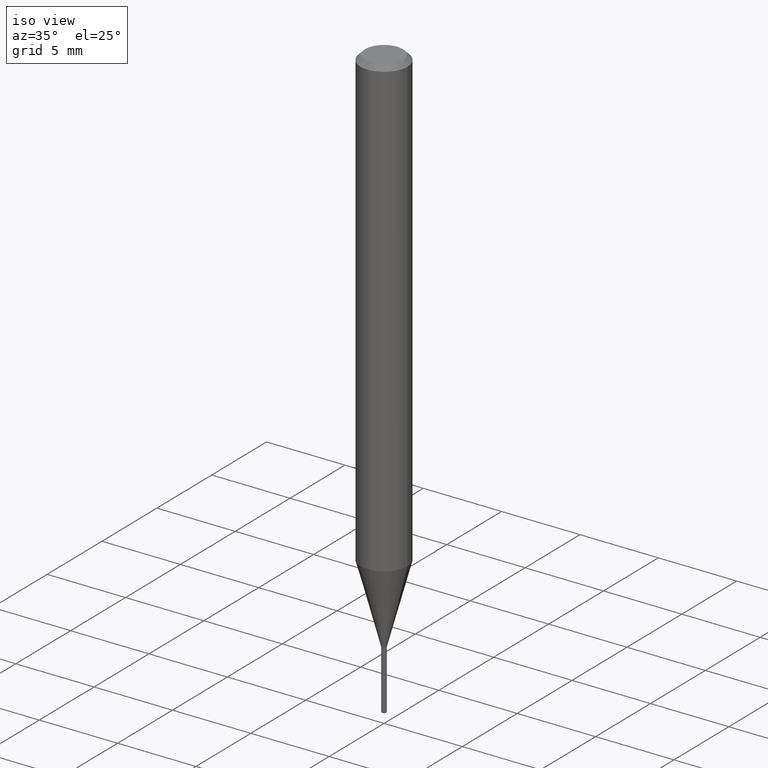
[diagram: clean part render]
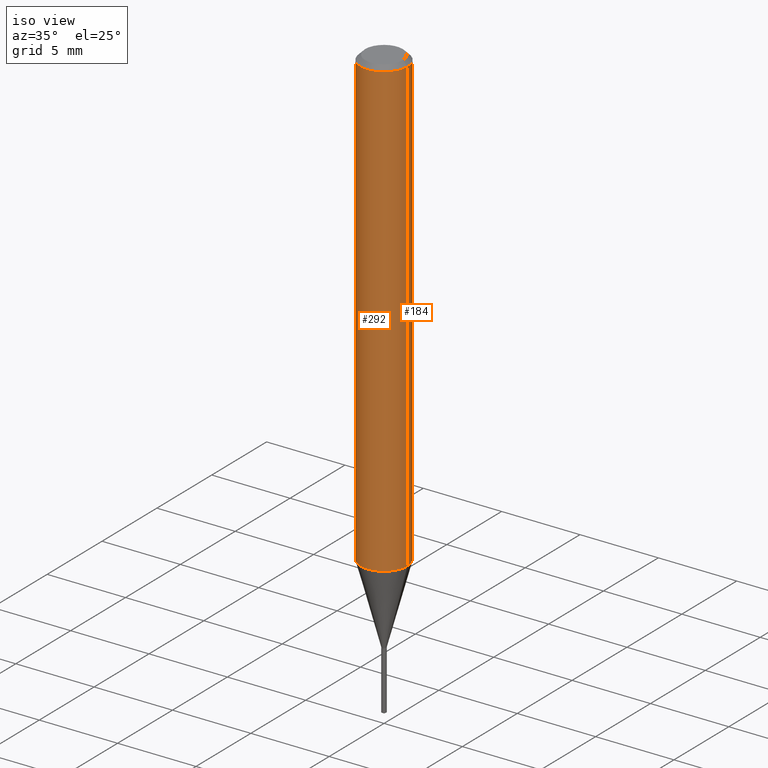
[diagram: same view with one multi-face feature highlighted, each face labeled with its STEP entity id]
A machine part, iso view. The highlighted faces form ONE feature: a constant-radius fillet chain: 2 tangent blend faces with common blend radius 1.4999 mm. The faces share edges in the B-rep.
Their STEP definitions:
[1] entity #292 (Cylinder):
#5 = DIRECTION ( 'NONE',  ( -2.445468806185136597E-29, 3.491481338843145583E-15, 1.000000000000000000 ) ) ;
#17 = CARTESIAN_POINT ( 'NONE',  ( -0.05905000000000013710, -3.580597539234551987E-15, -1.145695089416200130 ) ) ;
#22 = VECTOR ( 'NONE', #277, 39.37007874015748143 ) ;
#27 = DIRECTION ( 'NONE',  ( 1.000000000000000000, -6.982962677686264344E-15, 0.000000000000000000 ) ) ;
#55 = VERTEX_POINT ( 'NONE', #118 ) ;
#62 = AXIS2_PLACEMENT_3D ( 'NONE', #101, #216, #27 ) ;
#75 = DIRECTION ( 'NONE',  ( 1.000000000000000000, -6.982962677686266711E-15, 4.876176775795936353E-29 ) ) ;
#85 = CIRCLE ( 'NONE', #234, 0.05904999999999999832 ) ;
#87 = ORIENTED_EDGE ( 'NONE', *, *, #386, .F. ) ;
#89 = ORIENTED_EDGE ( 'NONE', *, *, #96, .F. ) ;
#96 = EDGE_CURVE ( 'NONE', #441, #291, #459, .T. ) ;
#101 = CARTESIAN_POINT ( 'NONE',  ( 2.801761602566808784E-29, -4.000173024700892268E-15, -1.145695089416200130 ) ) ;
#117 = CARTESIAN_POINT ( 'NONE',  ( 0.05905000000000013710, -4.412516970818267978E-15, -1.145695089416200130 ) ) ;
#118 = CARTESIAN_POINT ( 'NONE',  ( 0.05904999999999999832, -4.535783407291118600E-16, -0.01181000000000006871 ) ) ;
#130 = VECTOR ( 'NONE', #140, 39.37007874015748143 ) ;
#140 = DIRECTION ( 'NONE',  ( -2.445468806185136877E-29, 3.491481338843145188E-15, 1.000000000000000000 ) ) ;
#146 = CARTESIAN_POINT ( 'NONE',  ( 0.000000000000000000, 0.000000000000000000, 0.000000000000000000 ) ) ;
#152 = EDGE_LOOP ( 'NONE', ( #89, #159, #245, #87 ) ) ;
#153 = CARTESIAN_POINT ( 'NONE',  ( -0.05904999999999999832, -1.601128224189974322E-15, -0.01181000000000006871 ) ) ;
#159 = ORIENTED_EDGE ( 'NONE', *, *, #202, .T. ) ;
#182 = DIRECTION ( 'NONE',  ( -2.445468806185136597E-29, 3.491481338843145583E-15, 1.000000000000000000 ) ) ;
#185 = FACE_OUTER_BOUND ( 'NONE', #152, .T. ) ;
#202 = EDGE_CURVE ( 'NONE', #441, #263, #377, .T. ) ;
#216 = DIRECTION ( 'NONE',  ( -2.445468806185136597E-29, 3.491481338843145583E-15, 1.000000000000000000 ) ) ;
#230 = CYLINDRICAL_SURFACE ( 'NONE', #310, 0.05905000000000006771 ) ;
#233 = EDGE_CURVE ( 'NONE', #263, #55, #417, .T. ) ;
#234 = AXIS2_PLACEMENT_3D ( 'NONE', #382, #182, #342 ) ;
#245 = ORIENTED_EDGE ( 'NONE', *, *, #233, .T. ) ;
#263 = VERTEX_POINT ( 'NONE', #117 ) ;
#277 = DIRECTION ( 'NONE',  ( -2.445468806185136877E-29, 3.491481338843145188E-15, 1.000000000000000000 ) ) ;
#291 = VERTEX_POINT ( 'NONE', #153 ) ;
#292 = ADVANCED_FACE ( 'NONE', ( #185 ), #230, .T. ) ;
#309 = CARTESIAN_POINT ( 'NONE',  ( -0.05905000000000006771, 4.195754854663396409E-16, -2.904631170795525045E-30 ) ) ;
#310 = AXIS2_PLACEMENT_3D ( 'NONE', #146, #5, #75 ) ;
#339 = CARTESIAN_POINT ( 'NONE',  ( 0.05905000000000006771, -4.123439461173745257E-16, 2.879382386107503723E-30 ) ) ;
#342 = DIRECTION ( 'NONE',  ( 1.000000000000000000, -6.982962677686266711E-15, 0.000000000000000000 ) ) ;
#377 = CIRCLE ( 'NONE', #62, 0.05905000000000013710 ) ;
#382 = CARTESIAN_POINT ( 'NONE',  ( 2.888098660104663328E-31, -4.123439461173779030E-17, -0.01181000000000006871 ) ) ;
#386 = EDGE_CURVE ( 'NONE', #291, #55, #85, .T. ) ;
#417 = LINE ( 'NONE', #339, #130 ) ;
#441 = VERTEX_POINT ( 'NONE', #17 ) ;
#459 = LINE ( 'NONE', #309, #22 ) ;
[2] entity #184 (Cylinder):
#17 = CARTESIAN_POINT ( 'NONE',  ( -0.05905000000000013710, -3.580597539234551987E-15, -1.145695089416200130 ) ) ;
#22 = VECTOR ( 'NONE', #277, 39.37007874015748143 ) ;
#45 = CYLINDRICAL_SURFACE ( 'NONE', #302, 0.05905000000000006771 ) ;
#53 = DIRECTION ( 'NONE',  ( -2.445468806185136597E-29, 3.491481338843145583E-15, 1.000000000000000000 ) ) ;
#55 = VERTEX_POINT ( 'NONE', #118 ) ;
#76 = DIRECTION ( 'NONE',  ( -2.445468806185136597E-29, 3.491481338843145583E-15, 1.000000000000000000 ) ) ;
#92 = EDGE_LOOP ( 'NONE', ( #242, #124, #410, #404 ) ) ;
#96 = EDGE_CURVE ( 'NONE', #441, #291, #459, .T. ) ;
#117 = CARTESIAN_POINT ( 'NONE',  ( 0.05905000000000013710, -4.412516970818267978E-15, -1.145695089416200130 ) ) ;
#118 = CARTESIAN_POINT ( 'NONE',  ( 0.05904999999999999832, -4.535783407291118600E-16, -0.01181000000000006871 ) ) ;
#124 = ORIENTED_EDGE ( 'NONE', *, *, #96, .T. ) ;
#130 = VECTOR ( 'NONE', #140, 39.37007874015748143 ) ;
#140 = DIRECTION ( 'NONE',  ( -2.445468806185136877E-29, 3.491481338843145188E-15, 1.000000000000000000 ) ) ;
#153 = CARTESIAN_POINT ( 'NONE',  ( -0.05904999999999999832, -1.601128224189974322E-15, -0.01181000000000006871 ) ) ;
#155 = CARTESIAN_POINT ( 'NONE',  ( 2.801761602566808784E-29, -4.000173024700892268E-15, -1.145695089416200130 ) ) ;
#175 = EDGE_CURVE ( 'NONE', #263, #441, #446, .T. ) ;
#184 = ADVANCED_FACE ( 'NONE', ( #231 ), #45, .T. ) ;
#194 = CARTESIAN_POINT ( 'NONE',  ( 2.888098660104663328E-31, -4.123439461173779030E-17, -0.01181000000000006871 ) ) ;
#228 = DIRECTION ( 'NONE',  ( 1.000000000000000000, -6.982962677686264344E-15, 0.000000000000000000 ) ) ;
#231 = FACE_OUTER_BOUND ( 'NONE', #92, .T. ) ;
#233 = EDGE_CURVE ( 'NONE', #263, #55, #417, .T. ) ;
#242 = ORIENTED_EDGE ( 'NONE', *, *, #175, .T. ) ;
#256 = DIRECTION ( 'NONE',  ( -2.445468806185136597E-29, 3.491481338843145583E-15, 1.000000000000000000 ) ) ;
#258 = DIRECTION ( 'NONE',  ( 1.000000000000000000, -6.982962677686266711E-15, 4.876176775795936353E-29 ) ) ;
#263 = VERTEX_POINT ( 'NONE', #117 ) ;
#277 = DIRECTION ( 'NONE',  ( -2.445468806185136877E-29, 3.491481338843145188E-15, 1.000000000000000000 ) ) ;
#291 = VERTEX_POINT ( 'NONE', #153 ) ;
#302 = AXIS2_PLACEMENT_3D ( 'NONE', #480, #256, #258 ) ;
#309 = CARTESIAN_POINT ( 'NONE',  ( -0.05905000000000006771, 4.195754854663396409E-16, -2.904631170795525045E-30 ) ) ;
#326 = DIRECTION ( 'NONE',  ( 1.000000000000000000, -6.982962677686266711E-15, 0.000000000000000000 ) ) ;
#339 = CARTESIAN_POINT ( 'NONE',  ( 0.05905000000000006771, -4.123439461173745257E-16, 2.879382386107503723E-30 ) ) ;
#383 = AXIS2_PLACEMENT_3D ( 'NONE', #155, #76, #228 ) ;
#394 = AXIS2_PLACEMENT_3D ( 'NONE', #194, #53, #326 ) ;
#404 = ORIENTED_EDGE ( 'NONE', *, *, #233, .F. ) ;
#410 = ORIENTED_EDGE ( 'NONE', *, *, #468, .F. ) ;
#417 = LINE ( 'NONE', #339, #130 ) ;
#441 = VERTEX_POINT ( 'NONE', #17 ) ;
#446 = CIRCLE ( 'NONE', #383, 0.05905000000000013710 ) ;
#459 = LINE ( 'NONE', #309, #22 ) ;
#468 = EDGE_CURVE ( 'NONE', #55, #291, #481, .T. ) ;
#480 = CARTESIAN_POINT ( 'NONE',  ( 0.000000000000000000, 0.000000000000000000, 0.000000000000000000 ) ) ;
#481 = CIRCLE ( 'NONE', #394, 0.05904999999999999832 ) ;